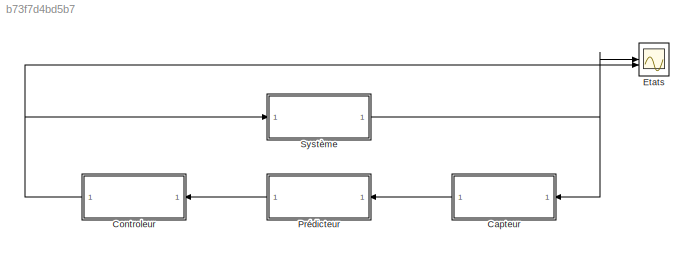
MODEL slx_b73f7d4bd5b7
KIND model
CONFIG AbsTol = auto
CONFIG EnableMultiTasking = off
CONFIG FixedStep = 5
CONFIG MaxStep = auto
CONFIG MinStep = auto
CONFIG RelTol = 1e-3
CONFIG SampleTimeConstraint = Unconstrained
CONFIG SolverName = ode1
CONFIG StartTime = 0.0
CONFIG StopTime = 100
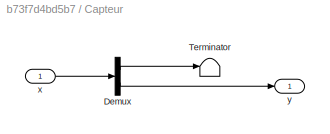
BLOCK [SubSystem] Capteur
BLOCK [Demux] Capteur/Demux
  Outputs = 2
BLOCK [Terminator] Capteur/Terminator
BLOCK [Inport] Capteur/x
BLOCK [Outport] Capteur/y
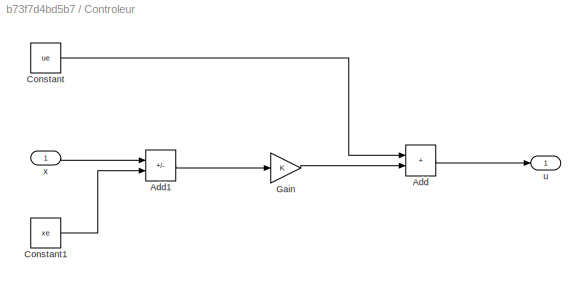
BLOCK [SubSystem] Controleur
BLOCK [Sum] Controleur/Add
  IconShape = rectangular
BLOCK [Sum] Controleur/Add1
  IconShape = rectangular
  Inputs = +-
BLOCK [Constant] Controleur/Constant
  Value = ue
BLOCK [Constant] Controleur/Constant1
  Value = xe
BLOCK [Gain] Controleur/Gain
  Gain = K
  Multiplication = Matrix(K*u)
BLOCK [Outport] Controleur/u
BLOCK [Inport] Controleur/x
BLOCK [Scope] Etats
  Floating = off
  NumInputPorts = 2
  ScopeSpecificationString = Simulink.scopes.TimeScopeBlockCfg('CurrentConfiguration', extmgr.ConfigurationSet(extmgr.Configuration('Core','General UI',true),extmgr.Configuration('Core','Source UI',true),extmgr.Configuration('Sources','WiredSimulink',true,'DataLoggingVariableName','ScopeData1'),extmgr.Configuration('Visuals','Time Domain',true,'TimeAxisLabels','All','SerializedDisplays',{struct('MinYLimReal','-0.13455','MaxYL...<+2199ch>
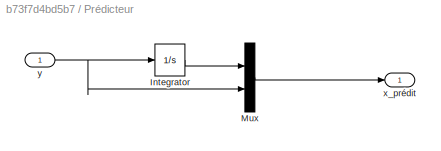
BLOCK [SubSystem] Prédicteur
BLOCK [Integrator] Prédicteur/Integrator
  InitialCondition = x0(1)
BLOCK [Mux] Prédicteur/Mux
  DisplayOption = bar
  Inputs = 2
BLOCK [Outport] Prédicteur/x_prédit
BLOCK [Inport] Prédicteur/y
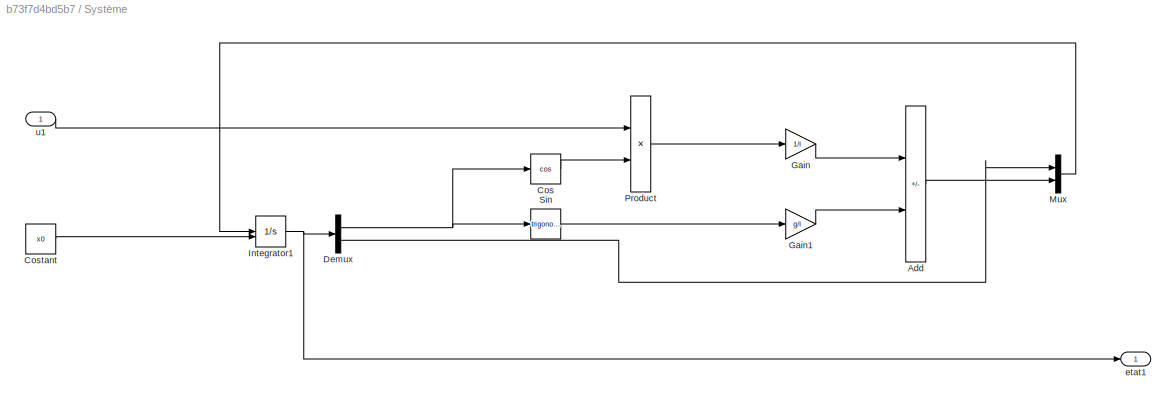
BLOCK [SubSystem] Système
BLOCK [Sum] Système/Add
  IconShape = rectangular
  Inputs = -+
BLOCK [Trigonometry] Système/Cos
  Operator = cos
BLOCK [Constant] Système/Costant
  Value = x0
BLOCK [Demux] Système/Demux
  Outputs = 2
BLOCK [Gain] Système/Gain
  Gain = 1/l
BLOCK [Gain] Système/Gain1
  Gain = g/l
BLOCK [Integrator] Système/Integrator1
  InitialConditionSource = external
BLOCK [Mux] Système/Mux
  DisplayOption = bar
  Inputs = 2
BLOCK [Product] Système/Product
BLOCK [Trigonometry] Système/Sin
BLOCK [Outport] Système/etat1
BLOCK [Inport] Système/u1
LINE Capteur/Demux:1 -> Capteur/Terminator:1
LINE Capteur/Demux:2 -> Capteur/y:1
LINE Capteur/x:1 -> Capteur/Demux:1
LINE Capteur:1 -> Prédicteur:1
LINE Controleur/Add1:1 -> Controleur/Gain:1
LINE Controleur/Add:1 -> Controleur/u:1
LINE Controleur/Constant1:1 -> Controleur/Add1:2
LINE Controleur/Constant:1 -> Controleur/Add:1
LINE Controleur/Gain:1 -> Controleur/Add:2
LINE Controleur/x:1 -> Controleur/Add1:1
NET Controleur:1 -> Etats:2, Système:1
LINE Prédicteur/Integrator:1 -> Prédicteur/Mux:1
LINE Prédicteur/Mux:1 -> Prédicteur/x_prédit:1
NET Prédicteur/y:1 -> Prédicteur/Integrator:1, Prédicteur/Mux:2
LINE Prédicteur:1 -> Controleur:1
LINE Système/Add:1 -> Système/Mux:2
LINE Système/Cos:1 -> Système/Product:2
LINE Système/Costant:1 -> Système/Integrator1:2
NET Système/Demux:1 -> Système/Cos:1, Système/Sin:1
LINE Système/Demux:2 -> Système/Mux:1
LINE Système/Gain1:1 -> Système/Add:2
LINE Système/Gain:1 -> Système/Add:1
NET Système/Integrator1:1 -> Système/Demux:1, Système/etat1:1
LINE Système/Mux:1 -> Système/Integrator1:1
LINE Système/Product:1 -> Système/Gain:1
LINE Système/Sin:1 -> Système/Gain1:1
LINE Système/u1:1 -> Système/Product:1
NET Système:1 -> Capteur:1, Etats:1
note: NET lines group one-source signal fan-out (src -> all destinations, sorted); 1:1 wires keep LINE
